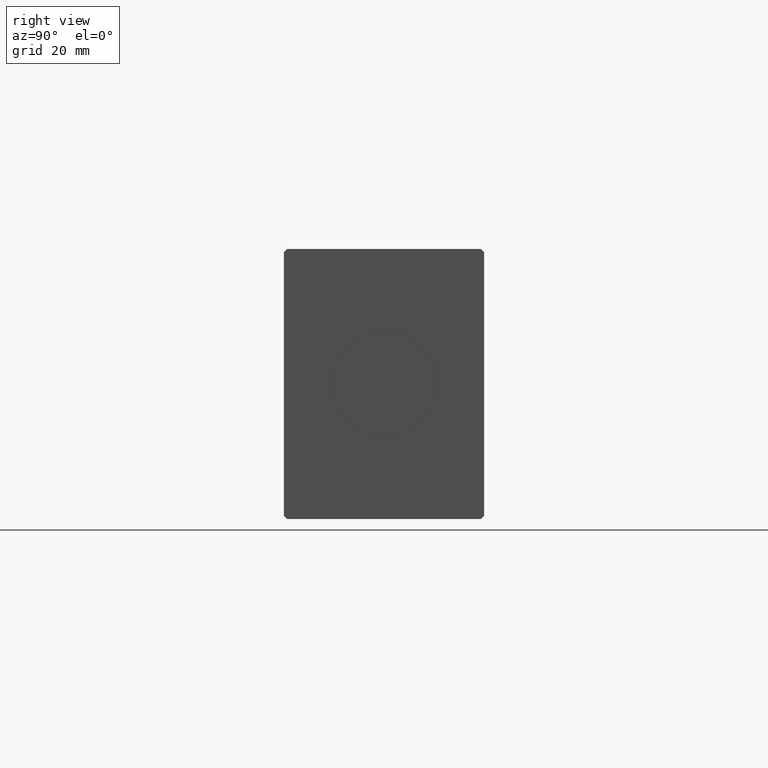
[diagram: clean part render]
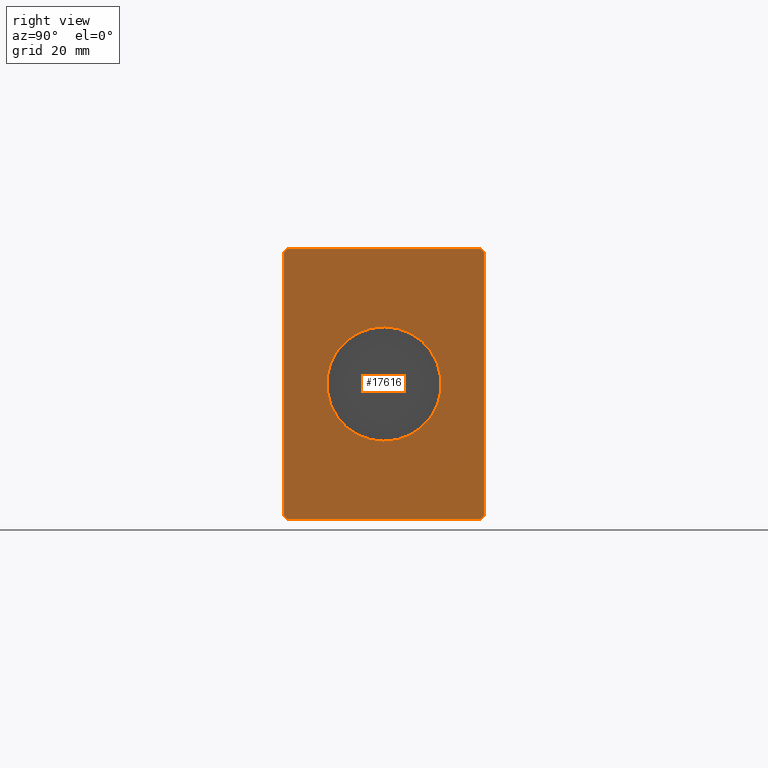
[diagram: same view with one face highlighted and labeled with its STEP entity id]
A machine part, right view. The second image highlights one B-rep face of the part: STEP entity #17616.
In plain terms, the highlighted planar face has unit normal (1, 0, 0).
Its self-contained STEP definition (entity closure, byte-faithful):
#186 = AXIS2_PLACEMENT_3D ( 'NONE', #16164, #7482, #13149 ) ;
#452 = CARTESIAN_POINT ( 'NONE',  ( 191.0000000000000000, -31.50000000000000000, -41.50000000000000711 ) ) ;
#915 = EDGE_CURVE ( 'NONE', #29366, #17107, #20493, .T. ) ;
#1463 = ORIENTED_EDGE ( 'NONE', *, *, #33307, .T. ) ;
#1535 = EDGE_LOOP ( 'NONE', ( #1463, #20292, #37020, #16566, #28713, #7774, #13732, #20363 ) ) ;
#3075 = CARTESIAN_POINT ( 'NONE',  ( 191.0000000000000000, -31.50000000000000000, -41.50000000000000711 ) ) ;
#3447 = EDGE_CURVE ( 'NONE', #36186, #35863, #12851, .T. ) ;
#5025 = VECTOR ( 'NONE', #39605, 999.9999999999998863 ) ;
#5313 = DIRECTION ( 'NONE',  ( 0.000000000000000000, 0.7071067811865462405, 0.7071067811865489050 ) ) ;
#5486 = CARTESIAN_POINT ( 'NONE',  ( 191.0000000000000000, -30.50000000000000355, 42.49999999999999289 ) ) ;
#5549 = CARTESIAN_POINT ( 'NONE',  ( 191.0000000000000000, 0.000000000000000000, 0.000000000000000000 ) ) ;
#5812 = DIRECTION ( 'NONE',  ( 0.000000000000000000, 0.000000000000000000, -1.000000000000000000 ) ) ;
#6058 = CIRCLE ( 'NONE', #17011, 18.00000000000000000 ) ;
#6992 = DIRECTION ( 'NONE',  ( 0.000000000000000000, 1.000000000000000000, 0.000000000000000000 ) ) ;
#7228 = VECTOR ( 'NONE', #12485, 1000.000000000000114 ) ;
#7234 = VECTOR ( 'NONE', #29282, 1000.000000000000000 ) ;
#7482 = DIRECTION ( 'NONE',  ( 1.000000000000000000, 0.000000000000000000, 0.000000000000000000 ) ) ;
#7774 = ORIENTED_EDGE ( 'NONE', *, *, #3447, .T. ) ;
#7814 = VECTOR ( 'NONE', #5812, 1000.000000000000000 ) ;
#7920 = VERTEX_POINT ( 'NONE', #22807 ) ;
#8916 = LINE ( 'NONE', #5486, #5025 ) ;
#9719 = DIRECTION ( 'NONE',  ( 0.000000000000000000, 0.000000000000000000, -1.000000000000000000 ) ) ;
#9921 = CARTESIAN_POINT ( 'NONE',  ( 191.0000000000000000, 0.000000000000000000, 0.000000000000000000 ) ) ;
#9996 = EDGE_CURVE ( 'NONE', #35863, #29366, #20633, .T. ) ;
#10128 = LINE ( 'NONE', #10914, #7234 ) ;
#10157 = EDGE_CURVE ( 'NONE', #36173, #20015, #10128, .T. ) ;
#10560 = ORIENTED_EDGE ( 'NONE', *, *, #24097, .F. ) ;
#10914 = CARTESIAN_POINT ( 'NONE',  ( 191.0000000000000000, 30.50000000000001421, 42.49999999999999289 ) ) ;
#11472 = ORIENTED_EDGE ( 'NONE', *, *, #28074, .F. ) ;
#12279 = CARTESIAN_POINT ( 'NONE',  ( 191.0000000000000000, 31.50000000000001421, 41.49999999999999289 ) ) ;
#12485 = DIRECTION ( 'NONE',  ( 0.000000000000000000, -0.7071067811865474617, 0.7071067811865474617 ) ) ;
#12851 = LINE ( 'NONE', #25145, #25702 ) ;
#13149 = DIRECTION ( 'NONE',  ( 0.000000000000000000, 0.000000000000000000, -1.000000000000000000 ) ) ;
#13732 = ORIENTED_EDGE ( 'NONE', *, *, #9996, .T. ) ;
#14824 = FACE_OUTER_BOUND ( 'NONE', #1535, .T. ) ;
#15077 = AXIS2_PLACEMENT_3D ( 'NONE', #5549, #27128, #17846 ) ;
#15248 = CARTESIAN_POINT ( 'NONE',  ( 191.0000000000000000, -30.50000000000000711, -42.50000000000000711 ) ) ;
#15288 = CARTESIAN_POINT ( 'NONE',  ( 191.0000000000000000, 31.50000000000001421, -41.50000000000000711 ) ) ;
#15508 = LINE ( 'NONE', #12279, #7228 ) ;
#15788 = LINE ( 'NONE', #452, #38956 ) ;
#16164 = CARTESIAN_POINT ( 'NONE',  ( 191.0000000000000000, 0.000000000000000000, 0.000000000000000000 ) ) ;
#16566 = ORIENTED_EDGE ( 'NONE', *, *, #31221, .T. ) ;
#17011 = AXIS2_PLACEMENT_3D ( 'NONE', #9921, #36984, #9719 ) ;
#17107 = VERTEX_POINT ( 'NONE', #32136 ) ;
#17279 = CARTESIAN_POINT ( 'NONE',  ( 191.0000000000000000, 31.50000000000001421, -41.50000000000000711 ) ) ;
#17616 = ADVANCED_FACE ( 'NONE', ( #32982, #14824 ), #21071, .T. ) ;
#17846 = DIRECTION ( 'NONE',  ( 0.000000000000000000, 0.000000000000000000, -1.000000000000000000 ) ) ;
#18536 = EDGE_CURVE ( 'NONE', #20015, #26239, #8916, .T. ) ;
#20015 = VERTEX_POINT ( 'NONE', #27722 ) ;
#20032 = CARTESIAN_POINT ( 'NONE',  ( 191.0000000000000000, -31.50000000000000000, 41.49999999999999289 ) ) ;
#20292 = ORIENTED_EDGE ( 'NONE', *, *, #10157, .T. ) ;
#20363 = ORIENTED_EDGE ( 'NONE', *, *, #915, .T. ) ;
#20493 = LINE ( 'NONE', #17279, #37199 ) ;
#20633 = LINE ( 'NONE', #32953, #21414 ) ;
#21071 = PLANE ( 'NONE',  #15077 ) ;
#21414 = VECTOR ( 'NONE', #5313, 999.9999999999998863 ) ;
#22066 = VERTEX_POINT ( 'NONE', #35421 ) ;
#22505 = CARTESIAN_POINT ( 'NONE',  ( 191.0000000000000000, 30.50000000000001776, -42.50000000000000711 ) ) ;
#22807 = CARTESIAN_POINT ( 'NONE',  ( 191.0000000000000000, 2.204364238465235428E-15, 18.00000000000000000 ) ) ;
#23523 = DIRECTION ( 'NONE',  ( 0.000000000000000000, 0.000000000000000000, 1.000000000000000000 ) ) ;
#24019 = CIRCLE ( 'NONE', #186, 18.00000000000000000 ) ;
#24097 = EDGE_CURVE ( 'NONE', #22066, #7920, #6058, .T. ) ;
#24561 = LINE ( 'NONE', #33868, #7814 ) ;
#25145 = CARTESIAN_POINT ( 'NONE',  ( 191.0000000000000000, -30.50000000000000711, -42.50000000000000711 ) ) ;
#25468 = EDGE_CURVE ( 'NONE', #38355, #36186, #15788, .T. ) ;
#25702 = VECTOR ( 'NONE', #6992, 1000.000000000000000 ) ;
#26239 = VERTEX_POINT ( 'NONE', #20032 ) ;
#27128 = DIRECTION ( 'NONE',  ( 1.000000000000000000, 0.000000000000000000, 0.000000000000000000 ) ) ;
#27722 = CARTESIAN_POINT ( 'NONE',  ( 191.0000000000000000, -30.50000000000000355, 42.49999999999999289 ) ) ;
#28074 = EDGE_CURVE ( 'NONE', #7920, #22066, #24019, .T. ) ;
#28713 = ORIENTED_EDGE ( 'NONE', *, *, #25468, .T. ) ;
#29282 = DIRECTION ( 'NONE',  ( 0.000000000000000000, -1.000000000000000000, 0.000000000000000000 ) ) ;
#29366 = VERTEX_POINT ( 'NONE', #15288 ) ;
#31221 = EDGE_CURVE ( 'NONE', #26239, #38355, #24561, .T. ) ;
#32136 = CARTESIAN_POINT ( 'NONE',  ( 191.0000000000000000, 31.50000000000001421, 41.49999999999999289 ) ) ;
#32953 = CARTESIAN_POINT ( 'NONE',  ( 191.0000000000000000, 30.50000000000001776, -42.50000000000000711 ) ) ;
#32982 = FACE_BOUND ( 'NONE', #35501, .T. ) ;
#33011 = CARTESIAN_POINT ( 'NONE',  ( 191.0000000000000000, 30.50000000000001421, 42.49999999999999289 ) ) ;
#33307 = EDGE_CURVE ( 'NONE', #17107, #36173, #15508, .T. ) ;
#33868 = CARTESIAN_POINT ( 'NONE',  ( 191.0000000000000000, -31.50000000000000000, 41.49999999999999289 ) ) ;
#34547 = DIRECTION ( 'NONE',  ( 0.000000000000000000, 0.7071067811865451302, -0.7071067811865500152 ) ) ;
#35421 = CARTESIAN_POINT ( 'NONE',  ( 191.0000000000000000, 0.000000000000000000, -18.00000000000000000 ) ) ;
#35501 = EDGE_LOOP ( 'NONE', ( #10560, #11472 ) ) ;
#35863 = VERTEX_POINT ( 'NONE', #22505 ) ;
#36173 = VERTEX_POINT ( 'NONE', #33011 ) ;
#36186 = VERTEX_POINT ( 'NONE', #15248 ) ;
#36984 = DIRECTION ( 'NONE',  ( 1.000000000000000000, 0.000000000000000000, 0.000000000000000000 ) ) ;
#37020 = ORIENTED_EDGE ( 'NONE', *, *, #18536, .T. ) ;
#37199 = VECTOR ( 'NONE', #23523, 1000.000000000000000 ) ;
#38355 = VERTEX_POINT ( 'NONE', #3075 ) ;
#38956 = VECTOR ( 'NONE', #34547, 1000.000000000000114 ) ;
#39605 = DIRECTION ( 'NONE',  ( 0.000000000000000000, -0.7071067811865462405, -0.7071067811865489050 ) ) ;